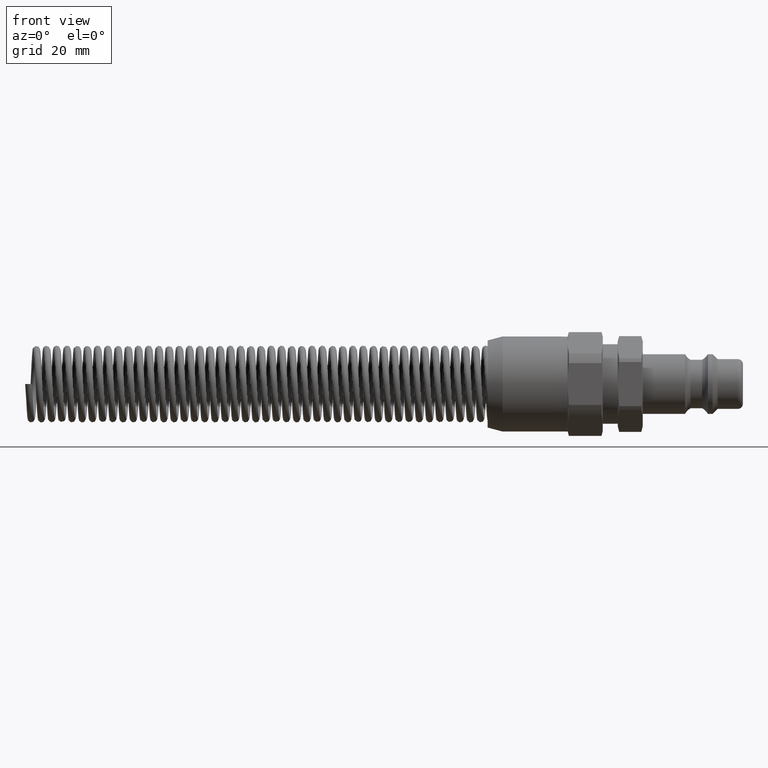
[diagram: clean part render]
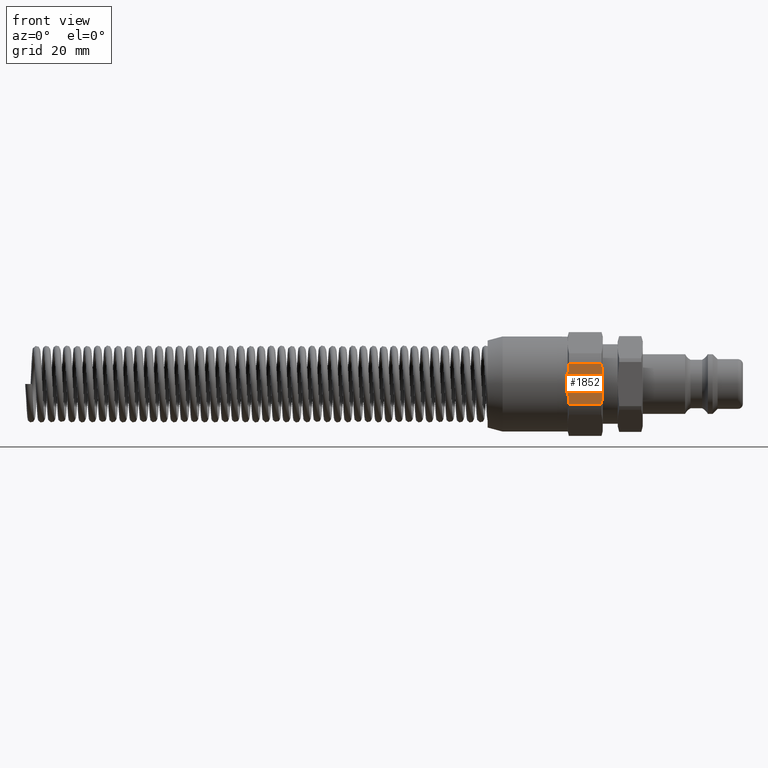
[diagram: same view with one face highlighted and labeled with its STEP entity id]
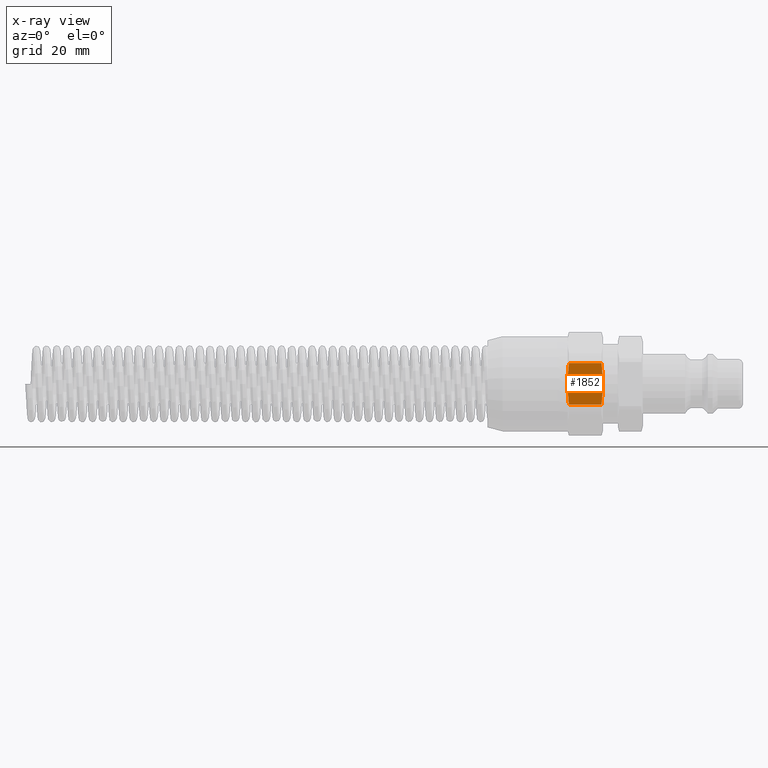
[diagram: x-ray of the same camera — body ghosted, the highlighted face saturated]
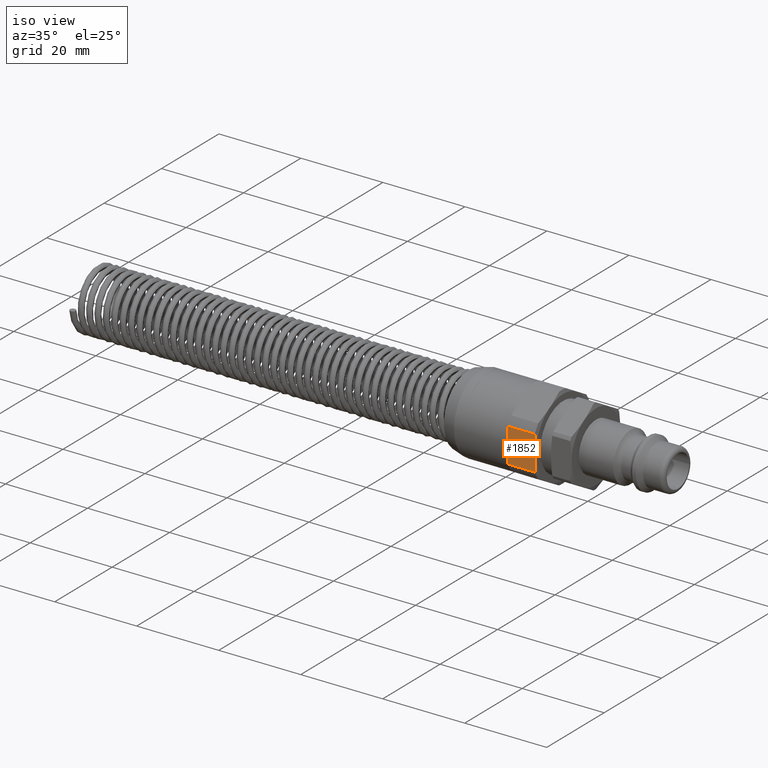
[diagram: same view with one face highlighted and labeled with its STEP entity id]
A machine part, front view. The second image highlights one B-rep face of the part: STEP entity #1852.
The next image is the same camera in x-ray: the body ghosted, the highlighted face saturated — about 0% of this face is hidden behind the body in this view.
A second angle (iso view) of the same face is appended — the face is thin or edge-on in the first view.
In plain terms, the highlighted planar face has unit normal (0, 1, 0).
Its self-contained STEP definition (entity closure, byte-faithful):
#1769=CARTESIAN_POINT('',(15.003621509148939,-1.665335E-015,-9.500000000000000));
#1770=DIRECTION('',(0.0,0.0,1.0));
#1771=DIRECTION('',(-1.0,0.0,0.0));
#1772=AXIS2_PLACEMENT_3D('',#1769,#1770,#1771);
#1773=PLANE('',#1772);
#1774=CARTESIAN_POINT('',(16.0,-1.665335E-015,-9.500000000000000));
#1775=VERTEX_POINT('',#1774);
#1776=CARTESIAN_POINT('',(16.234455543377237,-4.170206829403073,-9.500000000000000));
#1777=VERTEX_POINT('',#1776);
#1778=CARTESIAN_POINT('',(15.999999999999998,-1.582068E-015,-9.500000000000000));
#1779=CARTESIAN_POINT('',(16.0,-1.993306409022865,-9.500000000000000));
#1780=CARTESIAN_POINT('',(16.234455543377237,-4.170206829403104,-9.500000000000000));
#1788=(BOUNDED_CURVE()B_SPLINE_CURVE(2,(#1778,#1779,#1780),.UNSPECIFIED.,.F.,.U.)B_SPLINE_CURVE_WITH_KNOTS((3,3),(0.417832555540470,0.835665111080939),.UNSPECIFIED.)CURVE()GEOMETRIC_REPRESENTATION_ITEM()RATIONAL_B_SPLINE_CURVE((1.0,1.022767144358296,1.0))REPRESENTATION_ITEM(''));
#1789=EDGE_CURVE('',#1775,#1777,#1788,.T.);
#1790=ORIENTED_EDGE('',*,*,#1789,.F.);
#1791=CARTESIAN_POINT('',(16.234455543377237,4.170206829403071,-9.500000000000002));
#1792=VERTEX_POINT('',#1791);
#1793=CARTESIAN_POINT('',(16.234455543377237,4.170206829403100,-9.500000000000002));
#1794=CARTESIAN_POINT('',(15.999999999999996,1.993306409022862,-9.500000000000002));
#1795=CARTESIAN_POINT('',(15.999999999999998,-1.582068E-015,-9.500000000000000));
#1803=(BOUNDED_CURVE()B_SPLINE_CURVE(2,(#1793,#1794,#1795),.UNSPECIFIED.,.F.,.U.)B_SPLINE_CURVE_WITH_KNOTS((3,3),(0.0,0.417832555540470),.UNSPECIFIED.)CURVE()GEOMETRIC_REPRESENTATION_ITEM()RATIONAL_B_SPLINE_CURVE((1.0,1.022767144358237,1.0))REPRESENTATION_ITEM(''));
#1804=EDGE_CURVE('',#1792,#1775,#1803,.T.);
#1805=ORIENTED_EDGE('',*,*,#1804,.F.);
#1806=CARTESIAN_POINT('',(22.765544456622774,4.170206829403071,-9.500000000000002));
#1807=VERTEX_POINT('',#1806);
#1808=CARTESIAN_POINT('',(22.765544456622770,4.170206829403071,-9.500000000000000));
#1809=DIRECTION('',(-1.0,0.0,0.0));
#1810=VECTOR('',#1809,6.531088913245537);
#1811=LINE('',#1808,#1810);
#1812=EDGE_CURVE('',#1807,#1792,#1811,.T.);
#1813=ORIENTED_EDGE('',*,*,#1812,.F.);
#1814=CARTESIAN_POINT('',(23.000000000000004,-1.665335E-015,-9.500000000000000));
#1815=VERTEX_POINT('',#1814);
#1816=CARTESIAN_POINT('',(23.000000000000004,-1.582068E-015,-9.500000000000000));
#1817=CARTESIAN_POINT('',(23.000000000000004,1.993306409022845,-9.500000000000000));
#1818=CARTESIAN_POINT('',(22.765544456622774,4.170206829403074,-9.500000000000000));
#1826=(BOUNDED_CURVE()B_SPLINE_CURVE(2,(#1816,#1817,#1818),.UNSPECIFIED.,.F.,.U.)B_SPLINE_CURVE_WITH_KNOTS((3,3),(0.417832555540467,0.835665111080934),.UNSPECIFIED.)CURVE()GEOMETRIC_REPRESENTATION_ITEM()RATIONAL_B_SPLINE_CURVE((1.0,1.022767144358334,1.0))REPRESENTATION_ITEM(''));
#1827=EDGE_CURVE('',#1815,#1807,#1826,.T.);
#1828=ORIENTED_EDGE('',*,*,#1827,.F.);
#1829=CARTESIAN_POINT('',(22.765544456622774,-4.170206829403075,-9.500000000000000));
#1830=VERTEX_POINT('',#1829);
#1831=CARTESIAN_POINT('',(22.765544456622774,-4.170206829403077,-9.499999999999998));
#1832=CARTESIAN_POINT('',(23.000000000000004,-1.993306409022849,-9.500000000000000));
#1833=CARTESIAN_POINT('',(23.000000000000004,-1.582068E-015,-9.500000000000000));
#1841=(BOUNDED_CURVE()B_SPLINE_CURVE(2,(#1831,#1832,#1833),.UNSPECIFIED.,.F.,.U.)B_SPLINE_CURVE_WITH_KNOTS((3,3),(0.0,0.417832555540467),.UNSPECIFIED.)CURVE()GEOMETRIC_REPRESENTATION_ITEM()RATIONAL_B_SPLINE_CURVE((1.0,1.022767144358327,1.0))REPRESENTATION_ITEM(''));
#1842=EDGE_CURVE('',#1830,#1815,#1841,.T.);
#1843=ORIENTED_EDGE('',*,*,#1842,.F.);
#1844=CARTESIAN_POINT('',(16.234455543377234,-4.170206829403075,-9.499999999999998));
#1845=DIRECTION('',(1.0,0.0,0.0));
#1846=VECTOR('',#1845,6.531088913245537);
#1847=LINE('',#1844,#1846);
#1848=EDGE_CURVE('',#1777,#1830,#1847,.T.);
#1849=ORIENTED_EDGE('',*,*,#1848,.F.);
#1850=EDGE_LOOP('',(#1790,#1805,#1813,#1828,#1843,#1849));
#1851=FACE_OUTER_BOUND('',#1850,.T.);
#1852=ADVANCED_FACE('',(#1851),#1773,.F.);